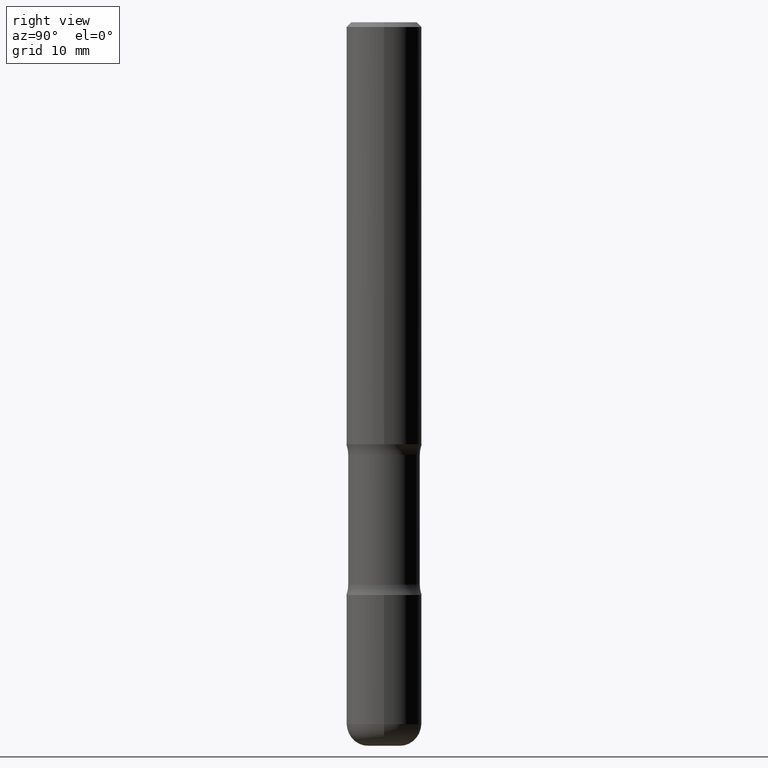
[diagram: clean part render]
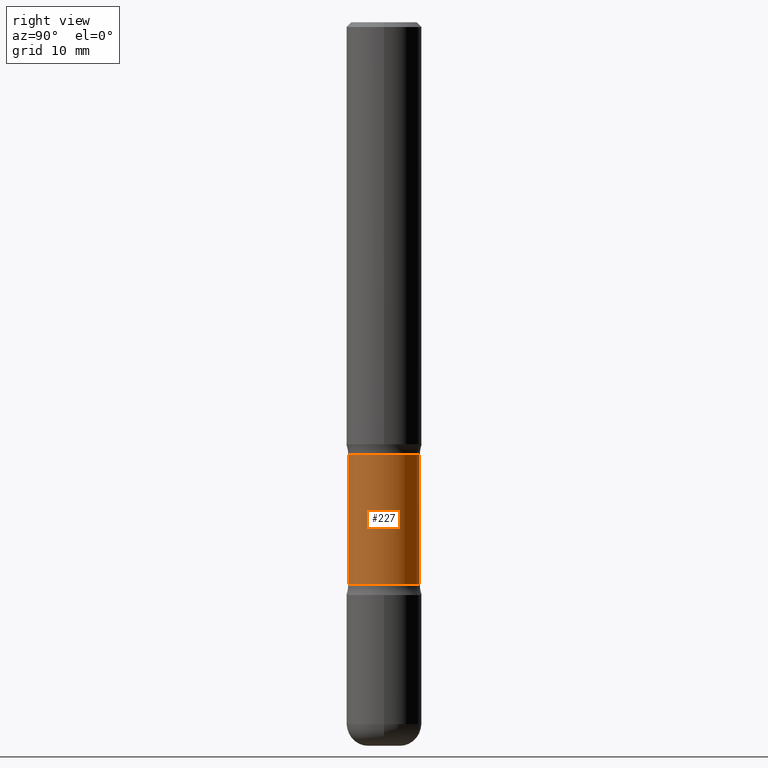
[diagram: same view with one face highlighted and labeled with its STEP entity id]
A machine part, right view. The second image highlights one B-rep face of the part: STEP entity #227.
In plain terms, the highlighted cylindrical surface (edge-blend (fillet) strip) has radius 3.7703 mm, axis along (0, -0, -1).
Its self-contained STEP definition (entity closure, byte-faithful):
#5 = FACE_OUTER_BOUND ( 'NONE', #385, .T. ) ;
#22 = EDGE_CURVE ( 'NONE', #437, #301, #504, .T. ) ;
#45 = VECTOR ( 'NONE', #351, 39.37007874015748143 ) ;
#55 = DIRECTION ( 'NONE',  ( 2.523926373086038410E-29, -3.379125637513666367E-15, -1.000000000000000000 ) ) ;
#66 = CARTESIAN_POINT ( 'NONE',  ( 1.036533522469128973E-15, 0.1484374999999896194, -3.000000000000000444 ) ) ;
#92 = EDGE_CURVE ( 'NONE', #173, #437, #311, .T. ) ;
#96 = DIRECTION ( 'NONE',  ( 6.982962677686265133E-15, 1.000000000000000000, -3.680805717779217644E-15 ) ) ;
#139 = AXIS2_PLACEMENT_3D ( 'NONE', #313, #160, #326 ) ;
#145 = CARTESIAN_POINT ( 'NONE',  ( -1.045153991847964360E-15, -0.1484375000000063560, -1.793498159084609522 ) ) ;
#154 = DIRECTION ( 'NONE',  ( 2.523926373086038410E-29, -3.379125637513666367E-15, -1.000000000000000000 ) ) ;
#160 = DIRECTION ( 'NONE',  ( 2.523926373086038410E-29, -3.379125637513666367E-15, -1.000000000000000000 ) ) ;
#163 = VECTOR ( 'NONE', #154, 39.37007874015748143 ) ;
#173 = VERTEX_POINT ( 'NONE', #198 ) ;
#184 = LINE ( 'NONE', #318, #45 ) ;
#198 = CARTESIAN_POINT ( 'NONE',  ( 1.036533522469098602E-15, 0.1484374999999936995, -1.793498159084610633 ) ) ;
#220 = CARTESIAN_POINT ( 'NONE',  ( -1.045153991847949569E-15, -0.1484375000000081601, -2.331501840915390034 ) ) ;
#223 = CARTESIAN_POINT ( 'NONE',  ( 5.698202263795362163E-29, -8.145282435205020267E-15, -2.331501840915390478 ) ) ;
#227 = ADVANCED_FACE ( 'NONE', ( #5 ), #268, .T. ) ;
#239 = EDGE_CURVE ( 'NONE', #379, #301, #184, .T. ) ;
#241 = CIRCLE ( 'NONE', #139, 0.1484375000000000278 ) ;
#262 = AXIS2_PLACEMENT_3D ( 'NONE', #223, #316, #96 ) ;
#268 = CYLINDRICAL_SURFACE ( 'NONE', #292, 0.1484375000000000000 ) ;
#292 = AXIS2_PLACEMENT_3D ( 'NONE', #526, #55, #529 ) ;
#299 = ORIENTED_EDGE ( 'NONE', *, *, #239, .T. ) ;
#301 = VERTEX_POINT ( 'NONE', #220 ) ;
#310 = CARTESIAN_POINT ( 'NONE',  ( 1.036533522469112013E-15, 0.1484374999999918399, -2.331501840915391366 ) ) ;
#311 = LINE ( 'NONE', #66, #163 ) ;
#313 = CARTESIAN_POINT ( 'NONE',  ( 4.340320582405264943E-29, -6.327300400853882778E-15, -1.793498159084609966 ) ) ;
#316 = DIRECTION ( 'NONE',  ( 2.523926373086038410E-29, -3.379125637513666367E-15, -1.000000000000000000 ) ) ;
#318 = CARTESIAN_POINT ( 'NONE',  ( -1.018355171544137761E-15, -0.1484375000000104083, -2.999999999999999112 ) ) ;
#319 = ORIENTED_EDGE ( 'NONE', *, *, #92, .F. ) ;
#326 = DIRECTION ( 'NONE',  ( 6.982962677686265133E-15, 1.000000000000000000, -3.680805717779216855E-15 ) ) ;
#335 = ORIENTED_EDGE ( 'NONE', *, *, #22, .F. ) ;
#351 = DIRECTION ( 'NONE',  ( 2.523926373086038410E-29, -3.379125637513666367E-15, -1.000000000000000000 ) ) ;
#355 = EDGE_CURVE ( 'NONE', #173, #379, #241, .T. ) ;
#379 = VERTEX_POINT ( 'NONE', #145 ) ;
#385 = EDGE_LOOP ( 'NONE', ( #391, #299, #335, #319 ) ) ;
#391 = ORIENTED_EDGE ( 'NONE', *, *, #355, .T. ) ;
#437 = VERTEX_POINT ( 'NONE', #310 ) ;
#504 = CIRCLE ( 'NONE', #262, 0.1484375000000000000 ) ;
#526 = CARTESIAN_POINT ( 'NONE',  ( 7.385442397868472267E-29, -1.040422170319851125E-14, -2.999999999999999556 ) ) ;
#529 = DIRECTION ( 'NONE',  ( 6.982962677686266711E-15, 1.000000000000000000, -3.680805717779217644E-15 ) ) ;